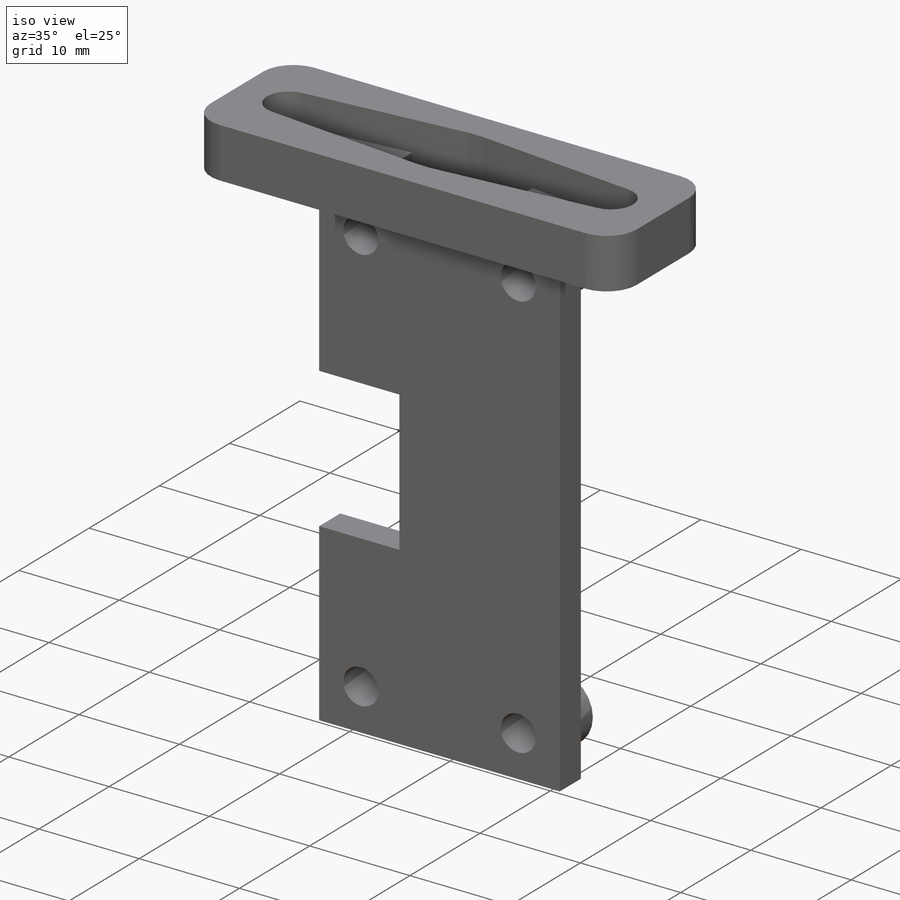
[diagram: iso view]
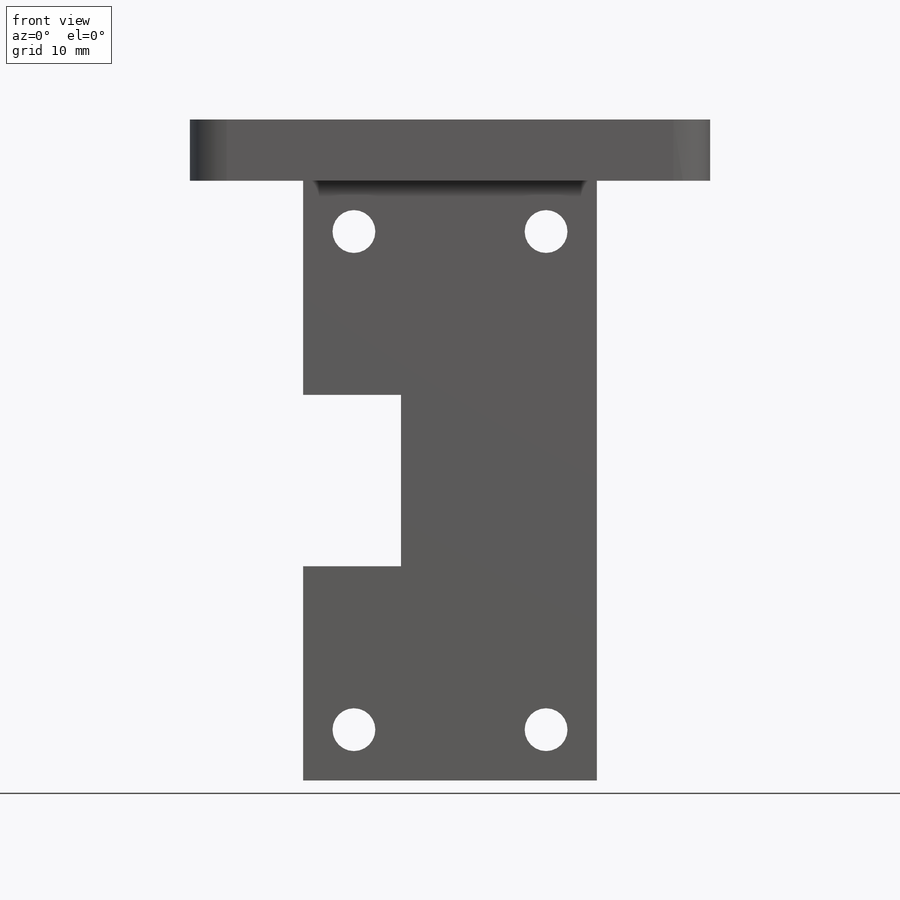
[diagram: front view]
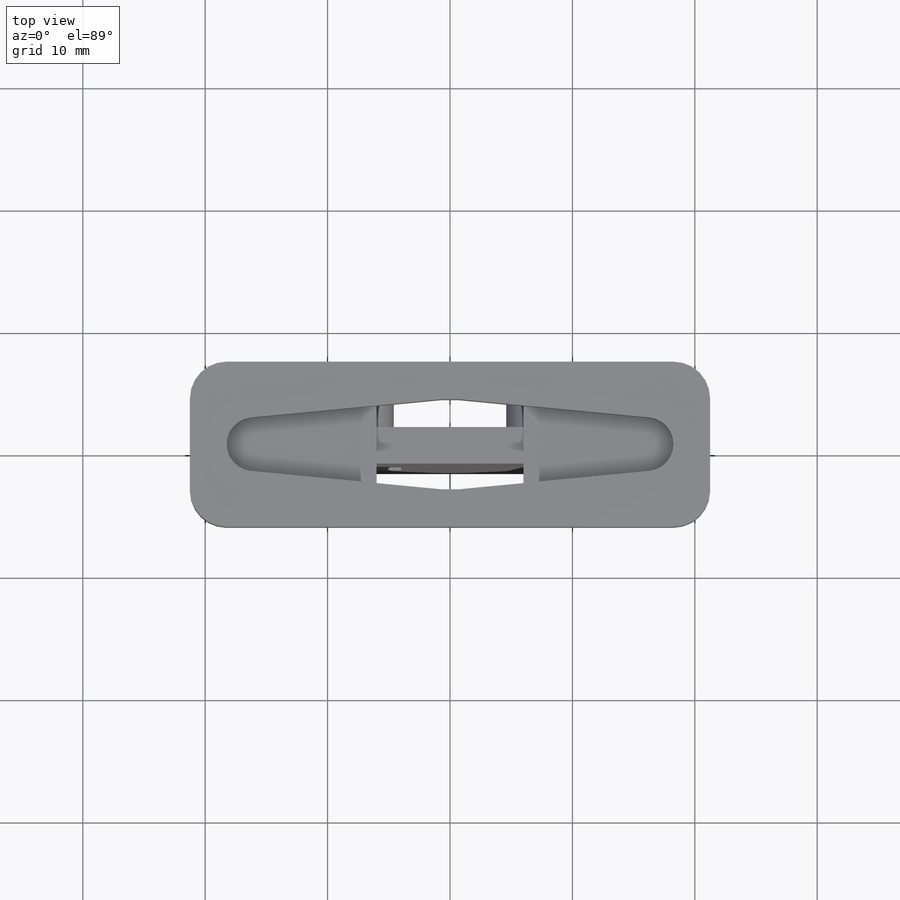
[diagram: top view]
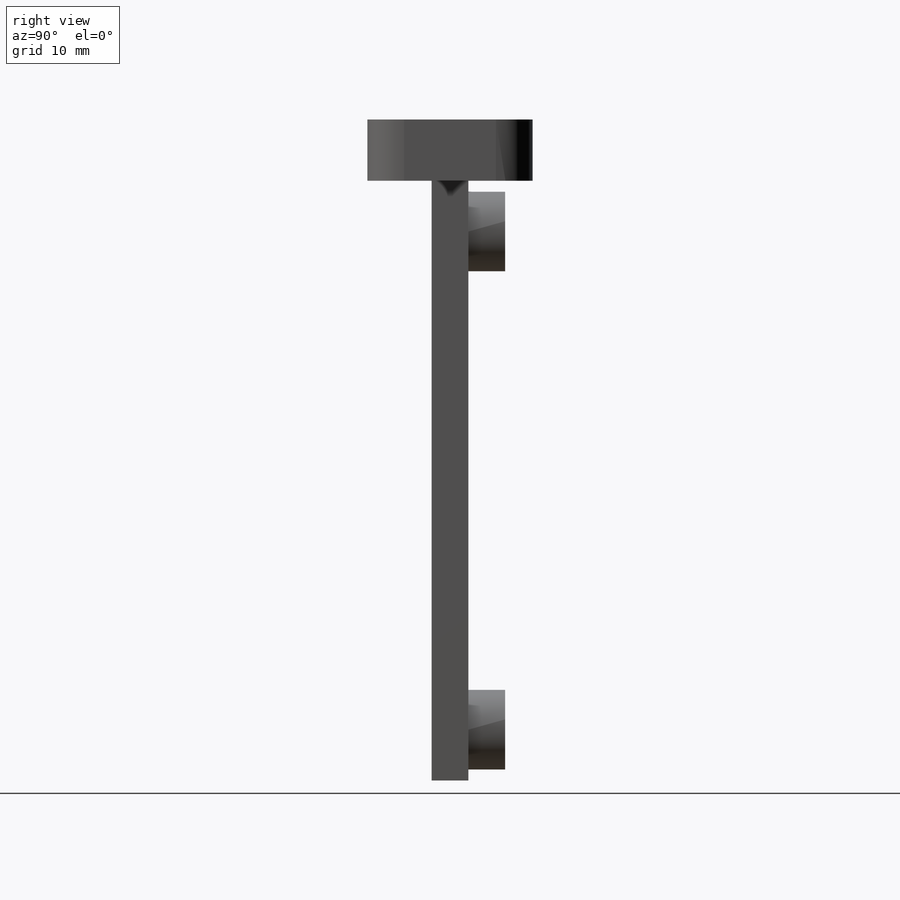
[diagram: right view]
SOLIDWORKS PART (.sldprt)
format: sldprt  version: not decoded by parser v0  size: 266,752 bytes
history: native  units: mm
features: sketch x5, extrude x4, material x1, cut_extrude x1 (+13 scaffold rows collapsed)
feature tree (24):
  scaffold x13  (default folders/planes/origin — collapsed)
  material  "Material <not specified>"
  sketch  "Sketch1"  dims[D5=3.0mm D8=7.5mm D1=36.5mm D2=7.5mm D3=3.0mm D4=3.0mm D6=2.2mm D7=3.75mm]
  extrude  "Boss-Extrude1"  Depth=5mm
  sketch  "Sketch2"  dims[c1.D3=3.5mm c1.D5=3.5mm c1.D1=~6.394536mm c1.D2=12.0mm c2.D1=6.0mm c2.D4=6.0mm c2.D5=6.0mm]
  extrude  "Boss-Extrude2"  Depth=2mm
  sketch  "Sketch4"  dims[D1=3.0mm D2=24.0mm]
  extrude  "Boss-Extrude3"  Depth=49mm
  sketch  "Sketch5"  dims[c1.D1=3.5mm c1.D2=3.5mm c1.D3=3.5mm c1.D4=3.5mm c1.D5=3.5mm c2.D1=15.7mm c2.D6=40.7mm c2.D7=4.15mm c2.D8=4.15mm c2.D9=14.0mm c2.D10=8.0mm c2.D11=17.5mm]
  cut_extrude  "Cut-Extrude1"  [1 undecoded]
  sketch  "Sketch6"  dims[D1=1.5mm]
  extrude  "Boss-Extrude4"  Depth=3mm
decode coverage: 9 of 10 modeling features carry decoded parameters
note: ~ marks probable driven/reference dimensions
note: 1 parameter value undecoded
note: suppression state not decoded; provenance and decode notes live in map.json
